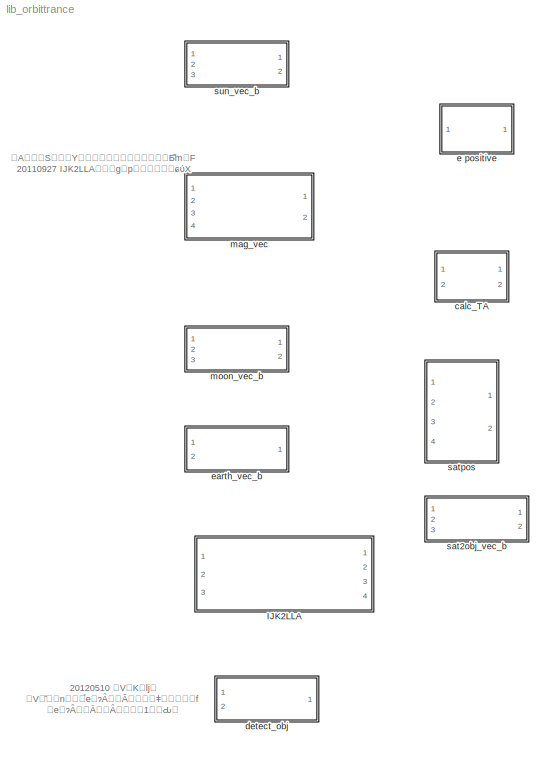
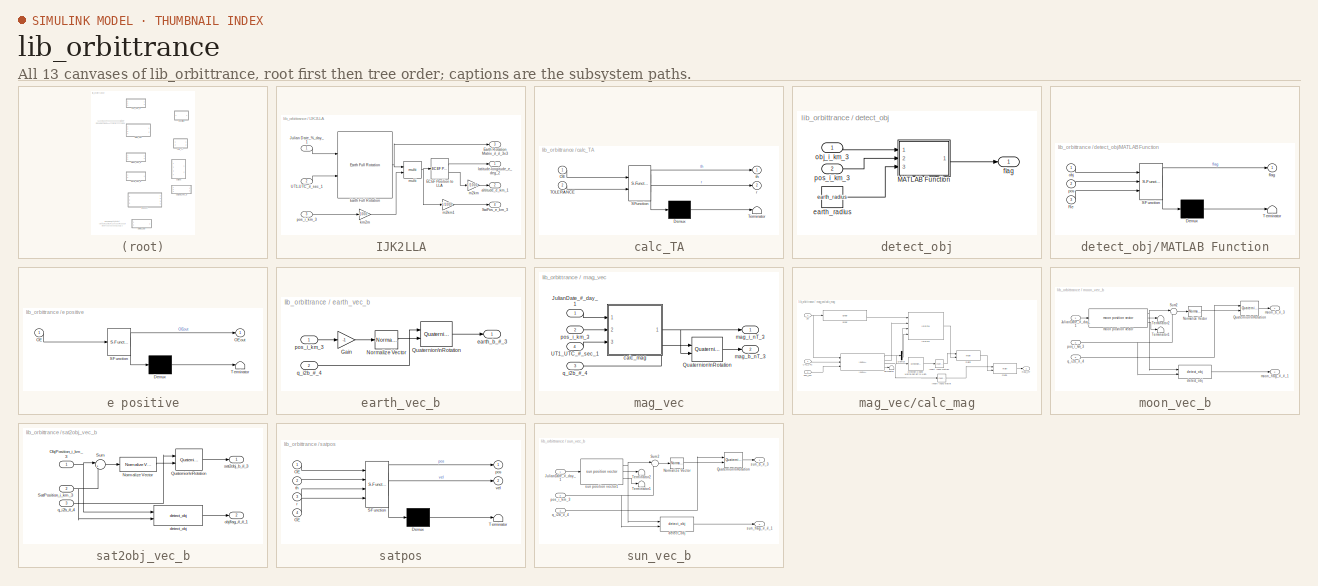
[diagram: thumbnail index - all 13 canvases of the model, root first then tree order]
MODEL lib_orbittrance
KIND library
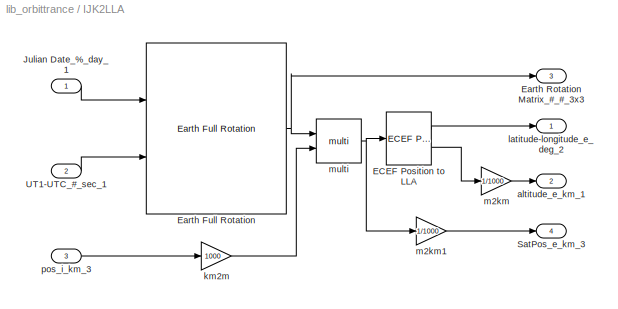
BLOCK [SubSystem] IJK2LLA
  FunctionWithSeparateData = off
  MaskHideContents = off
  MinAlgLoopOccurrences = off
  Opaque = off
  Ports = [3, 4]
  PropExecContextOutsideSubsystem = off
  RTWSystemCode = Auto
  RequestExecContextInheritance = off
  SID = 229
BLOCK [Reference] IJK2LLA/ECEF Position to LLA  REF=aerolibtransform2/ECEF Position to LLA
  F = 1/298.257223563
  Ports = [1, 2]
  R = 6378137
  SID = 235
  SourceBlock = aerolibtransform2/ECEF Position to LLA
  SourceType = ECEF to LLA
  ptype = Earth (WGS84)
  units = Metric (MKS)
BLOCK [Reference] IJK2LLA/Earth Full Rotation  REF=lib_astrodynamics/Earth Full Rotation  (lib defined in mdl_a29f7b0aead9)
  Ports = [2, 1]
  SID = 236
  SourceBlock = lib_astrodynamics/Earth Full Rotation
  SourceType = SubSystem
BLOCK [Outport] IJK2LLA/Earth Rotation Matrix_#_#_3x3
  IconDisplay = Port number
  Port = 3
  SID = 243
BLOCK [Inport] IJK2LLA/Julian Date_%_day_1
  IconDisplay = Port number
  SID = 232
BLOCK [Outport] IJK2LLA/SatPos_e_km_3
  IconDisplay = Port number
  Port = 4
  SID = 244
BLOCK [Inport] IJK2LLA/UT1-UTC_#_sec_1
  IconDisplay = Port number
  Port = 2
  SID = 233
BLOCK [Outport] IJK2LLA/altitude_e_km_1
  IconDisplay = Port number
  Port = 2
  SID = 242
BLOCK [Gain] IJK2LLA/km2m
  Gain = 1000
  OutDataTypeStr = Inherit: Inherit via internal rule
  ParamDataTypeStr = Inherit: Inherit via internal rule
  SID = 237
  SaturateOnIntegerOverflow = off
BLOCK [Outport] IJK2LLA/latitude-longitude_e_deg_2
  IconDisplay = Port number
  SID = 241
BLOCK [Gain] IJK2LLA/m2km
  Gain = 1/1000
  OutDataTypeStr = Inherit: Inherit via internal rule
  ParamDataTypeStr = Inherit: Inherit via internal rule
  SID = 238
  SaturateOnIntegerOverflow = off
BLOCK [Gain] IJK2LLA/m2km1
  Gain = 1/1000
  OutDataTypeStr = Inherit: Inherit via internal rule
  ParamDataTypeStr = Inherit: Inherit via internal rule
  SID = 239
  SaturateOnIntegerOverflow = off
BLOCK [Reference] IJK2LLA/multi  REF=lib_util/multi  (lib defined in mdl_263c60253fa7)
  Ports = [2, 1]
  SID = 240
  SourceBlock = lib_util/multi
  SourceType = SubSystem
BLOCK [Inport] IJK2LLA/pos_i_km_3
  IconDisplay = Port number
  Port = 3
  SID = 234
BLOCK [SubSystem] calc_TA
  ErrorFcn = Stateflow.Translate.translate
  FunctionWithSeparateData = off
  MaskDescription = Embedded MATLAB block
  MaskDisplay = bgColor = Simulink.Root.ColorString2Rgb(get_param(gcbh, 'BackgroundColor')); image(imread('private/eml_membrane_16.png','png','BackgroundColor',bgColor(1:3)),'center'); disp([10 10 'MOE_']);
  MaskHideContents = off
  MaskIconFrame = on
  MaskIconOpaque = off
  MaskIconRotate = none
  MaskIconUnits = normalized
  MaskPortRotate = default
  MaskSelfModifiable = on
  MaskType = Stateflow
  MinAlgLoopOccurrences = off
  Opaque = off
  PermitHierarchicalResolution = ExplicitOnly
  Ports = [2, 2]
  PropExecContextOutsideSubsystem = off
  RTWSystemCode = Auto
  RequestExecContextInheritance = off
  SID = 97
  TreatAsAtomicUnit = on
BLOCK [Demux] calc_TA/ Demux 
  Outputs = 1
  Ports = [1, 1]
  SID = 97::15
BLOCK [S-Function] calc_TA/ SFunction 
  EnableBusSupport = off
  FunctionName = sf_sfun
  PortCounts = [2 3]
  Ports = [2, 3]
  SID = 97::14
  Tag = Stateflow S-Function lib_orbittrance 3
BLOCK [Terminator] calc_TA/ Terminator 
  SID = 97::17
BLOCK [Inport] calc_TA/OE
  IconDisplay = Port number
  SID = 97::1
BLOCK [Inport] calc_TA/TOLERANCE
  IconDisplay = Port number
  Port = 2
  SID = 97::18
BLOCK [Outport] calc_TA/r
  IconDisplay = Port number
  Port = 2
  SID = 97::19
BLOCK [Outport] calc_TA/th
  IconDisplay = Port number
  SID = 97::5
BLOCK [SubSystem] detect_obj
  FunctionWithSeparateData = off
  MaskHideContents = off
  MinAlgLoopOccurrences = off
  Opaque = off
  Ports = [2, 1]
  PropExecContextOutsideSubsystem = off
  RTWSystemCode = Auto
  RequestExecContextInheritance = off
  SID = 76
BLOCK [SubSystem] detect_obj/MATLAB Function
  ErrorFcn = Stateflow.Translate.translate
  FunctionWithSeparateData = off
  MaskDescription = Embedded MATLAB block
  MaskDisplay = bgColor = Simulink.Root.ColorString2Rgb(get_param(gcbh, 'BackgroundColor')); image(imread('private/eml_membrane_16.png','png','BackgroundColor',bgColor(1:3)),'center'); disp([10 10 'detect_obj']);
  MaskHideContents = off
  MaskIconFrame = on
  MaskIconOpaque = off
  MaskIconRotate = none
  MaskIconUnits = normalized
  MaskPortRotate = default
  MaskSelfModifiable = on
  MaskType = Stateflow
  MinAlgLoopOccurrences = off
  Opaque = off
  PermitHierarchicalResolution = ExplicitOnly
  Ports = [3, 1]
  PropExecContextOutsideSubsystem = off
  RTWSystemCode = Auto
  RequestExecContextInheritance = off
  SID = 81
  TreatAsAtomicUnit = on
BLOCK [Demux] detect_obj/MATLAB Function/ Demux 
  Outputs = 1
  Ports = [1, 1]
  SID = 81::15
BLOCK [S-Function] detect_obj/MATLAB Function/ SFunction 
  EnableBusSupport = off
  FunctionName = sf_sfun
  PortCounts = [3 2]
  Ports = [3, 2]
  SID = 81::14
  Tag = Stateflow S-Function lib_orbittrance 2
BLOCK [Terminator] detect_obj/MATLAB Function/ Terminator 
  SID = 81::17
BLOCK [Inport] detect_obj/MATLAB Function/Re
  IconDisplay = Port number
  Port = 3
  SID = 81::19
BLOCK [Outport] detect_obj/MATLAB Function/flag
  IconDisplay = Port number
  SID = 81::5
BLOCK [Inport] detect_obj/MATLAB Function/obj
  IconDisplay = Port number
  SID = 81::1
BLOCK [Inport] detect_obj/MATLAB Function/pos
  IconDisplay = Port number
  Port = 2
  SID = 81::18
BLOCK [Constant] detect_obj/earth_radius
  SID = 80
  Value = earth_radius
BLOCK [Outport] detect_obj/flag
  IconDisplay = Port number
  SID = 78
BLOCK [Inport] detect_obj/obj_i_km_3
  IconDisplay = Port number
  SID = 77
BLOCK [Inport] detect_obj/pos_i_km_3
  IconDisplay = Port number
  Port = 2
  SID = 79
BLOCK [SubSystem] e positive
  ErrorFcn = Stateflow.Translate.translate
  FunctionWithSeparateData = off
  MaskDescription = Embedded MATLAB block
  MaskDisplay = bgColor = Simulink.Root.ColorString2Rgb(get_param(gcbh, 'BackgroundColor')); image(imread('private/eml_membrane_16.png','png','BackgroundColor',bgColor(1:3)),'center'); disp([10 10 'fcn']);
  MaskHideContents = off
  MaskIconFrame = on
  MaskIconOpaque = off
  MaskIconRotate = none
  MaskIconUnits = normalized
  MaskPortRotate = default
  MaskSelfModifiable = on
  MaskType = Stateflow
  MinAlgLoopOccurrences = off
  Opaque = off
  PermitHierarchicalResolution = ExplicitOnly
  Ports = [1, 1]
  PropExecContextOutsideSubsystem = off
  RTWSystemCode = Auto
  RequestExecContextInheritance = off
  SID = 96
  TreatAsAtomicUnit = on
BLOCK [Demux] e positive/ Demux 
  Outputs = 1
  Ports = [1, 1]
  SID = 96::15
BLOCK [S-Function] e positive/ SFunction 
  EnableBusSupport = off
  FunctionName = sf_sfun
  PortCounts = [1 2]
  Ports = [1, 2]
  SID = 96::14
  Tag = Stateflow S-Function lib_orbittrance 1
BLOCK [Terminator] e positive/ Terminator 
  SID = 96::17
BLOCK [Inport] e positive/OE
  IconDisplay = Port number
  SID = 96::1
BLOCK [Outport] e positive/OEout
  IconDisplay = Port number
  SID = 96::5
BLOCK [SubSystem] earth_vec_b
  FunctionWithSeparateData = off
  MaskHideContents = off
  MinAlgLoopOccurrences = off
  Opaque = off
  Ports = [2, 1]
  PropExecContextOutsideSubsystem = off
  RTWSystemCode = Auto
  RequestExecContextInheritance = off
  SID = 220
BLOCK [Gain] earth_vec_b/Gain
  Gain = -1
  OutDataTypeStr = Inherit: Inherit via internal rule
  ParamDataTypeStr = Inherit: Inherit via internal rule
  SID = 225
  SaturateOnIntegerOverflow = off
BLOCK [Reference] earth_vec_b/Normalize Vector  REF=vrlib/Utilities/Normalize Vector
  Ports = [1, 1]
  SID = 226
  SourceBlock = vrlib/Utilities/Normalize Vector
  SourceType = Normalize Vector
  maxzero = 0
BLOCK [Reference] earth_vec_b/Quaternion\nRotation  REF=aerolibutil/Quaternion\nRotation
  Ports = [2, 1]
  SID = 227
  SourceBlock = aerolibutil/Quaternion\nRotation
  SourceType = Quaternion Rotation
BLOCK [Outport] earth_vec_b/earth_b_#_3
  IconDisplay = Port number
  SID = 228
BLOCK [Inport] earth_vec_b/pos_i_km_3
  IconDisplay = Port number
  SID = 223
BLOCK [Inport] earth_vec_b/q_i2b_#_4
  IconDisplay = Port number
  Port = 2
  SID = 224
BLOCK [SubSystem] mag_vec
  FunctionWithSeparateData = off
  MaskHideContents = off
  MinAlgLoopOccurrences = off
  Opaque = off
  Ports = [4, 2]
  PropExecContextOutsideSubsystem = off
  RTWSystemCode = Auto
  RequestExecContextInheritance = off
  SID = 180
BLOCK [Inport] mag_vec/JulianDate_#_day_1
  IconDisplay = Port number
  SID = 183
BLOCK [Reference] mag_vec/Quaternion\nRotation  REF=aerolibutil/Quaternion\nRotation
  FunctionWithSeparateData = off
  GeneratePreprocessorConditionals = off
  Ports = [2, 1]
  RTWMemSecDataConstants = Inherit from model
  RTWMemSecDataInternal = Inherit from model
  RTWMemSecDataParameters = Inherit from model
  RTWMemSecFuncExecute = Inherit from model
  RTWMemSecFuncInitTerm = Inherit from model
  SID = 187
  ShowPortLabels = FromPortIcon
  SourceBlock = aerolibutil/Quaternion\nRotation
  SourceType = Quaternion Rotation
  SystemSampleTime = -1
BLOCK [Inport] mag_vec/UT1_UTC_#_sec_1
  IconDisplay = Port number
  Port = 4
  SID = 186
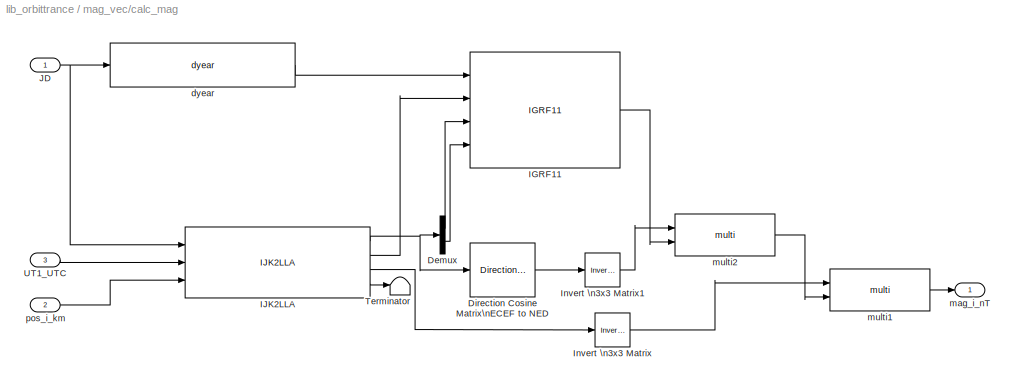
BLOCK [SubSystem] mag_vec/calc_mag
  FunctionWithSeparateData = off
  MaskHideContents = off
  MinAlgLoopOccurrences = off
  Opaque = off
  Ports = [3, 1]
  PropExecContextOutsideSubsystem = off
  RTWSystemCode = Auto
  RequestExecContextInheritance = off
  SID = 188
BLOCK [Demux] mag_vec/calc_mag/Demux
  DisplayOption = bar
  Outputs = 2
  Ports = [1, 2]
  SID = 192
BLOCK [Reference] mag_vec/calc_mag/Direction Cosine Matrix\nECEF to NED  REF=aerolibtransform2/Direction Cosine Matrix\nECEF to NED
  Ports = [1, 1]
  SID = 193
  SourceBlock = aerolibtransform2/Direction Cosine Matrix\nECEF to NED
  SourceType = DCM ECEF to NED
BLOCK [Reference] mag_vec/calc_mag/IGRF11  REF=lib_env/IGRF11  (lib defined in mdl_9d5cf06e00da)
  Ports = [4, 1]
  SID = 194
  SourceBlock = lib_env/IGRF11
  SourceType = SubSystem
BLOCK [Reference] mag_vec/calc_mag/IJK2LLA  REF=lib_orbittrance/IJK2LLA  (lib defined in mdl_e1987a65d5b0)
  Ports = [3, 4]
  SID = 195
  SourceBlock = lib_orbittrance/IJK2LLA
  SourceType = SubSystem
BLOCK [Reference] mag_vec/calc_mag/Invert \n3x3 Matrix  REF=aerolibutil/Invert \n3x3 Matrix
  Ports = [1, 1]
  SID = 196
  SourceBlock = aerolibutil/Invert \n3x3 Matrix
  SourceType = Invert 3x3 Matrix
BLOCK [Reference] mag_vec/calc_mag/Invert \n3x3 Matrix1  REF=aerolibutil/Invert \n3x3 Matrix
  Ports = [1, 1]
  SID = 197
  SourceBlock = aerolibutil/Invert \n3x3 Matrix
  SourceType = Invert 3x3 Matrix
BLOCK [Inport] mag_vec/calc_mag/JD
  IconDisplay = Port number
  SID = 189
BLOCK [Terminator] mag_vec/calc_mag/Terminator
  SID = 198
BLOCK [Inport] mag_vec/calc_mag/UT1_UTC
  IconDisplay = Port number
  Port = 3
  SID = 191
BLOCK [Reference] mag_vec/calc_mag/dyear  REF=lib_util/dyear  (lib defined in mdl_263c60253fa7)
  Ports = [1, 1]
  SID = 199
  SourceBlock = lib_util/dyear
  SourceType = SubSystem
BLOCK [Outport] mag_vec/calc_mag/mag_i_nT
  IconDisplay = Port number
  SID = 202
BLOCK [Reference] mag_vec/calc_mag/multi1  REF=lib_util/multi  (lib defined in mdl_263c60253fa7)
  Ports = [2, 1]
  SID = 200
  SourceBlock = lib_util/multi
  SourceType = SubSystem
BLOCK [Reference] mag_vec/calc_mag/multi2  REF=lib_util/multi  (lib defined in mdl_263c60253fa7)
  Ports = [2, 1]
  SID = 201
  SourceBlock = lib_util/multi
  SourceType = SubSystem
BLOCK [Inport] mag_vec/calc_mag/pos_i_km
  IconDisplay = Port number
  Port = 2
  SID = 190
BLOCK [Outport] mag_vec/mag_b_nT_3
  IconDisplay = Port number
  Port = 2
  SID = 204
BLOCK [Outport] mag_vec/mag_i_nT_3
  IconDisplay = Port number
  SID = 203
BLOCK [Inport] mag_vec/pos_i_km_3
  IconDisplay = Port number
  Port = 2
  SID = 184
BLOCK [Inport] mag_vec/q_i2b_#_4
  IconDisplay = Port number
  Port = 3
  SID = 185
BLOCK [SubSystem] moon_vec_b
  FunctionWithSeparateData = off
  MaskHideContents = off
  MinAlgLoopOccurrences = off
  Opaque = off
  Ports = [3, 2]
  PropExecContextOutsideSubsystem = off
  RTWSystemCode = Auto
  RequestExecContextInheritance = off
  SID = 205
BLOCK [Inport] moon_vec_b/JulianDate_#_day_1
  IconDisplay = Port number
  SID = 208
BLOCK [Reference] moon_vec_b/Normalize Vector  REF=vrlib/Utilities/Normalize Vector
  Ports = [1, 1]
  SID = 211
  SourceBlock = vrlib/Utilities/Normalize Vector
  SourceType = Normalize Vector
  maxzero = 0
BLOCK [Reference] moon_vec_b/Quaternion\nRotation  REF=aerolibutil/Quaternion\nRotation
  Ports = [2, 1]
  SID = 212
  SourceBlock = aerolibutil/Quaternion\nRotation
  SourceType = Quaternion Rotation
BLOCK [Sum] moon_vec_b/Sum2
  IconShape = round
  InputSameDT = off
  Inputs = |+-
  OutDataTypeStr = Inherit: Inherit via internal rule
  Ports = [2, 1]
  SID = 213
  SaturateOnIntegerOverflow = off
BLOCK [Terminator] moon_vec_b/Terminator1
  SID = 214
BLOCK [Terminator] moon_vec_b/Terminator2
  SID = 215
BLOCK [Reference] moon_vec_b/detect_obj  REF=lib_orbittrance/detect_obj  (lib defined in mdl_e1987a65d5b0)
  Ports = [2, 1]
  SID = 216
  SourceBlock = lib_orbittrance/detect_obj
  SourceType = SubSystem
BLOCK [Reference] moon_vec_b/moon position vector  REF=lib_astrodynamics/moon position vector  (lib defined in mdl_a29f7b0aead9)
  Ports = [1, 3]
  SID = 217
  SourceBlock = lib_astrodynamics/moon position vector
  SourceType = SubSystem
BLOCK [Outport] moon_vec_b/moon_b_#_3
  IconDisplay = Port number
  SID = 218
BLOCK [Outport] moon_vec_b/moon_flag_#_#_1
  IconDisplay = Port number
  Port = 2
  SID = 219
BLOCK [Inport] moon_vec_b/pos_i_km_3
  IconDisplay = Port number
  Port = 2
  SID = 209
BLOCK [Inport] moon_vec_b/q_i2b_#_4
  IconDisplay = Port number
  Port = 3
  SID = 210
BLOCK [SubSystem] sat2obj_vec_b
  FunctionWithSeparateData = off
  MaskHideContents = off
  MinAlgLoopOccurrences = off
  Opaque = off
  Ports = [3, 2]
  PropExecContextOutsideSubsystem = off
  RTWSystemCode = Auto
  RequestExecContextInheritance = off
  SID = 99
BLOCK [Reference] sat2obj_vec_b/Normalize Vector  REF=vrlib/Utilities/Normalize Vector
  Ports = [1, 1]
  SID = 107
  SourceBlock = vrlib/Utilities/Normalize Vector
  SourceType = Normalize Vector
  maxzero = 0
BLOCK [Inport] sat2obj_vec_b/ObjPosition_i_km_3
  IconDisplay = Port number
  SID = 102
BLOCK [Reference] sat2obj_vec_b/Quaternion\nRotation  REF=aerolibutil/Quaternion\nRotation
  Ports = [2, 1]
  SID = 108
  SourceBlock = aerolibutil/Quaternion\nRotation
  SourceType = Quaternion Rotation
BLOCK [Inport] sat2obj_vec_b/SatPosition_i_km_3
  IconDisplay = Port number
  Port = 2
  SID = 103
BLOCK [Sum] sat2obj_vec_b/Sum
  IconShape = round
  InputSameDT = off
  Inputs = |+-
  OutDataTypeStr = Inherit: Inherit via internal rule
  Ports = [2, 1]
  SID = 105
  SaturateOnIntegerOverflow = off
BLOCK [Reference] sat2obj_vec_b/detect_obj  REF=lib_orbittrance/detect_obj  (lib defined in mdl_e1987a65d5b0)
  Ports = [2, 1]
  SID = 106
  SourceBlock = lib_orbittrance/detect_obj
  SourceType = SubSystem
BLOCK [Outport] sat2obj_vec_b/objflag_#_#_1
  IconDisplay = Port number
  Port = 2
  SID = 110
BLOCK [Inport] sat2obj_vec_b/q_i2b_#_4
  IconDisplay = Port number
  Port = 3
  SID = 104
BLOCK [Outport] sat2obj_vec_b/sat2obj_b_#_3
  IconDisplay = Port number
  SID = 109
BLOCK [SubSystem] satpos
  ErrorFcn = Stateflow.Translate.translate
  FunctionWithSeparateData = off
  MaskDescription = Embedded MATLAB block
  MaskDisplay = bgColor = Simulink.Root.ColorString2Rgb(get_param(gcbh, 'BackgroundColor')); image(imread('private/eml_membrane_16.png','png','BackgroundColor',bgColor(1:3)),'center'); disp([10 10 'sat_pos']);
  MaskHideContents = off
  MaskIconFrame = on
  MaskIconOpaque = off
  MaskIconRotate = none
  MaskIconUnits = normalized
  MaskPortRotate = default
  MaskSelfModifiable = on
  MaskType = Stateflow
  MinAlgLoopOccurrences = off
  Opaque = off
  PermitHierarchicalResolution = ExplicitOnly
  Ports = [4, 2]
  PropExecContextOutsideSubsystem = off
  RTWSystemCode = Auto
  RequestExecContextInheritance = off
  SID = 98
  TreatAsAtomicUnit = on
BLOCK [Demux] satpos/ Demux 
  Outputs = 1
  Ports = [1, 1]
  SID = 98::15
BLOCK [S-Function] satpos/ SFunction 
  EnableBusSupport = off
  FunctionName = sf_sfun
  PortCounts = [4 3]
  Ports = [4, 3]
  SID = 98::14
  Tag = Stateflow S-Function lib_orbittrance 4
BLOCK [Terminator] satpos/ Terminator 
  SID = 98::17
BLOCK [Inport] satpos/GE
  IconDisplay = Port number
  Port = 4
  SID = 98::20
BLOCK [Inport] satpos/OE
  IconDisplay = Port number
  SID = 98::1
BLOCK [Outport] satpos/pos
  IconDisplay = Port number
  SID = 98::5
BLOCK [Inport] satpos/r
  IconDisplay = Port number
  Port = 3
  SID = 98::19
BLOCK [Inport] satpos/th
  IconDisplay = Port number
  Port = 2
  SID = 98::18
BLOCK [Outport] satpos/vel
  IconDisplay = Port number
  Port = 2
  SID = 98::21
BLOCK [SubSystem] sun_vec_b
  FunctionWithSeparateData = off
  MaskHideContents = off
  MinAlgLoopOccurrences = off
  Opaque = off
  Ports = [3, 2]
  PropExecContextOutsideSubsystem = off
  RTWSystemCode = Auto
  RequestExecContextInheritance = off
  SID = 8
BLOCK [Inport] sun_vec_b/JulianDate_#_day_1
  IconDisplay = Port number
  SID = 57
BLOCK [Reference] sun_vec_b/Normalize Vector  REF=vrlib/Utilities/Normalize Vector
  Ports = [1, 1]
  SID = 11
  SourceBlock = vrlib/Utilities/Normalize Vector
  SourceType = Normalize Vector
  maxzero = 0
BLOCK [Reference] sun_vec_b/Quaternion\nRotation  REF=aerolibutil/Quaternion\nRotation
  Ports = [2, 1]
  SID = 12
  SourceBlock = aerolibutil/Quaternion\nRotation
  SourceType = Quaternion Rotation
BLOCK [Sum] sun_vec_b/Sum2
  IconShape = round
  InputSameDT = off
  Inputs = |+-
  OutDataTypeStr = Inherit: Inherit via internal rule
  Ports = [2, 1]
  SID = 13
  SaturateOnIntegerOverflow = off
BLOCK [Terminator] sun_vec_b/Terminator1
  SID = 56
BLOCK [Terminator] sun_vec_b/Terminator2
  SID = 14
BLOCK [Reference] sun_vec_b/detect_obj  REF=lib_orbittrance/detect_obj  (lib defined in mdl_e1987a65d5b0)
  Ports = [2, 1]
  SID = 82
  SourceBlock = lib_orbittrance/detect_obj
  SourceType = SubSystem
BLOCK [Inport] sun_vec_b/pos_i_km_3
  IconDisplay = Port number
  Port = 2
  SID = 58
BLOCK [Inport] sun_vec_b/q_i2b_#_4
  IconDisplay = Port number
  Port = 3
  SID = 59
BLOCK [Reference] sun_vec_b/sun position vector1  REF=lib_astrodynamics/sun position vector  (lib defined in mdl_a29f7b0aead9)
  Ports = [1, 3]
  SID = 69
  SourceBlock = lib_astrodynamics/sun position vector
  SourceType = SubSystem
BLOCK [Outport] sun_vec_b/sun_b_#_3
  IconDisplay = Port number
  SID = 10
BLOCK [Outport] sun_vec_b/sun_flag_#_#_1
  IconDisplay = Port number
  Port = 2
  SID = 83
ANNOTATION (root): 20120510 VKÇÁ\nVÌªn ÌeÉÈÁÄ¢é<copyright redacted>\neÉÈÁÄ¢È¯êÎ1ðÔ·
ANNOTATION (root): ASYª³µ¢±ÆÍmF\n20110927 IJK2LLAðgp·éæ¤ÉÏX
LINE IJK2LLA/ECEF Position to LLA:1 -> IJK2LLA/latitude-longitude_e_deg_2:1
LINE IJK2LLA/ECEF Position to LLA:2 -> IJK2LLA/m2km:1
NET IJK2LLA/Earth Full Rotation:1 -> IJK2LLA/Earth Rotation Matrix_#_#_3x3:1, IJK2LLA/multi:1
LINE IJK2LLA/Julian Date_%_day_1:1 -> IJK2LLA/Earth Full Rotation:1
LINE IJK2LLA/UT1-UTC_#_sec_1:1 -> IJK2LLA/Earth Full Rotation:2
LINE IJK2LLA/km2m:1 -> IJK2LLA/multi:2
LINE IJK2LLA/m2km1:1 -> IJK2LLA/SatPos_e_km_3:1
LINE IJK2LLA/m2km:1 -> IJK2LLA/altitude_e_km_1:1
NET IJK2LLA/multi:1 -> IJK2LLA/ECEF Position to LLA:1, IJK2LLA/m2km1:1
LINE IJK2LLA/pos_i_km_3:1 -> IJK2LLA/km2m:1
LINE calc_TA/ Demux :1 -> calc_TA/ Terminator :1
LINE calc_TA/ SFunction :1 -> calc_TA/ Demux :1
LINE calc_TA/ SFunction :2 -> calc_TA/th:1
LINE calc_TA/ SFunction :3 -> calc_TA/r:1
LINE calc_TA/OE:1 -> calc_TA/ SFunction :1
LINE calc_TA/TOLERANCE:1 -> calc_TA/ SFunction :2
LINE detect_obj/MATLAB Function/ Demux :1 -> detect_obj/MATLAB Function/ Terminator :1
LINE detect_obj/MATLAB Function/ SFunction :1 -> detect_obj/MATLAB Function/ Demux :1
LINE detect_obj/MATLAB Function/ SFunction :2 -> detect_obj/MATLAB Function/flag:1
LINE detect_obj/MATLAB Function/Re:1 -> detect_obj/MATLAB Function/ SFunction :3
LINE detect_obj/MATLAB Function/obj:1 -> detect_obj/MATLAB Function/ SFunction :1
LINE detect_obj/MATLAB Function/pos:1 -> detect_obj/MATLAB Function/ SFunction :2
LINE detect_obj/MATLAB Function:1 -> detect_obj/flag:1
LINE detect_obj/earth_radius:1 -> detect_obj/MATLAB Function:3
LINE detect_obj/obj_i_km_3:1 -> detect_obj/MATLAB Function:1
LINE detect_obj/pos_i_km_3:1 -> detect_obj/MATLAB Function:2
LINE e positive/ Demux :1 -> e positive/ Terminator :1
LINE e positive/ SFunction :1 -> e positive/ Demux :1
LINE e positive/ SFunction :2 -> e positive/OEout:1
LINE e positive/OE:1 -> e positive/ SFunction :1
LINE earth_vec_b/Gain:1 -> earth_vec_b/Normalize Vector:1
LINE earth_vec_b/Normalize Vector:1 -> earth_vec_b/Quaternion\nRotation:2
LINE earth_vec_b/Quaternion\nRotation:1 -> earth_vec_b/earth_b_#_3:1
LINE earth_vec_b/pos_i_km_3:1 -> earth_vec_b/Gain:1
LINE earth_vec_b/q_i2b_#_4:1 -> earth_vec_b/Quaternion\nRotation:1
LINE mag_vec/JulianDate_#_day_1:1 -> mag_vec/calc_mag:1
LINE mag_vec/Quaternion\nRotation:1 -> mag_vec/mag_b_nT_3:1
LINE mag_vec/UT1_UTC_#_sec_1:1 -> mag_vec/calc_mag:3
LINE mag_vec/calc_mag/Demux:1 -> mag_vec/calc_mag/IGRF11:3
LINE mag_vec/calc_mag/Demux:2 -> mag_vec/calc_mag/IGRF11:4
LINE mag_vec/calc_mag/Direction Cosine Matrix\nECEF to NED:1 -> mag_vec/calc_mag/Invert \n3x3 Matrix1:1
LINE mag_vec/calc_mag/IGRF11:1 -> mag_vec/calc_mag/multi2:2
NET mag_vec/calc_mag/IJK2LLA:1 -> mag_vec/calc_mag/Demux:1, mag_vec/calc_mag/Direction Cosine Matrix\nECEF to NED:1
LINE mag_vec/calc_mag/IJK2LLA:2 -> mag_vec/calc_mag/IGRF11:2
LINE mag_vec/calc_mag/IJK2LLA:3 -> mag_vec/calc_mag/Invert \n3x3 Matrix:1
LINE mag_vec/calc_mag/IJK2LLA:4 -> mag_vec/calc_mag/Terminator:1
LINE mag_vec/calc_mag/Invert \n3x3 Matrix1:1 -> mag_vec/calc_mag/multi2:1
LINE mag_vec/calc_mag/Invert \n3x3 Matrix:1 -> mag_vec/calc_mag/multi1:1
NET mag_vec/calc_mag/JD:1 -> mag_vec/calc_mag/IJK2LLA:1, mag_vec/calc_mag/dyear:1
LINE mag_vec/calc_mag/UT1_UTC:1 -> mag_vec/calc_mag/IJK2LLA:2
LINE mag_vec/calc_mag/dyear:1 -> mag_vec/calc_mag/IGRF11:1
LINE mag_vec/calc_mag/multi1:1 -> mag_vec/calc_mag/mag_i_nT:1
LINE mag_vec/calc_mag/multi2:1 -> mag_vec/calc_mag/multi1:2
LINE mag_vec/calc_mag/pos_i_km:1 -> mag_vec/calc_mag/IJK2LLA:3
NET mag_vec/calc_mag:1 -> mag_vec/Quaternion\nRotation:2, mag_vec/mag_i_nT_3:1
LINE mag_vec/pos_i_km_3:1 -> mag_vec/calc_mag:2
LINE mag_vec/q_i2b_#_4:1 -> mag_vec/Quaternion\nRotation:1
LINE moon_vec_b/JulianDate_#_day_1:1 -> moon_vec_b/moon position vector:1
LINE moon_vec_b/Normalize Vector:1 -> moon_vec_b/Quaternion\nRotation:2
LINE moon_vec_b/Quaternion\nRotation:1 -> moon_vec_b/moon_b_#_3:1
LINE moon_vec_b/Sum2:1 -> moon_vec_b/Normalize Vector:1
LINE moon_vec_b/detect_obj:1 -> moon_vec_b/moon_flag_#_#_1:1
NET moon_vec_b/moon position vector:1 -> moon_vec_b/Sum2:1, moon_vec_b/detect_obj:1
LINE moon_vec_b/moon position vector:2 -> moon_vec_b/Terminator2:1
LINE moon_vec_b/moon position vector:3 -> moon_vec_b/Terminator1:1
NET moon_vec_b/pos_i_km_3:1 -> moon_vec_b/Sum2:2, moon_vec_b/detect_obj:2
LINE moon_vec_b/q_i2b_#_4:1 -> moon_vec_b/Quaternion\nRotation:1
LINE sat2obj_vec_b/Normalize Vector:1 -> sat2obj_vec_b/Quaternion\nRotation:2
NET sat2obj_vec_b/ObjPosition_i_km_3:1 -> sat2obj_vec_b/Sum:1, sat2obj_vec_b/detect_obj:1
LINE sat2obj_vec_b/Quaternion\nRotation:1 -> sat2obj_vec_b/sat2obj_b_#_3:1
NET sat2obj_vec_b/SatPosition_i_km_3:1 -> sat2obj_vec_b/Sum:2, sat2obj_vec_b/detect_obj:2
LINE sat2obj_vec_b/Sum:1 -> sat2obj_vec_b/Normalize Vector:1
LINE sat2obj_vec_b/detect_obj:1 -> sat2obj_vec_b/objflag_#_#_1:1
LINE sat2obj_vec_b/q_i2b_#_4:1 -> sat2obj_vec_b/Quaternion\nRotation:1
LINE satpos/ Demux :1 -> satpos/ Terminator :1
LINE satpos/ SFunction :1 -> satpos/ Demux :1
LINE satpos/ SFunction :2 -> satpos/pos:1
LINE satpos/ SFunction :3 -> satpos/vel:1
LINE satpos/GE:1 -> satpos/ SFunction :4
LINE satpos/OE:1 -> satpos/ SFunction :1
LINE satpos/r:1 -> satpos/ SFunction :3
LINE satpos/th:1 -> satpos/ SFunction :2
LINE sun_vec_b/JulianDate_#_day_1:1 -> sun_vec_b/sun position vector1:1
LINE sun_vec_b/Normalize Vector:1 -> sun_vec_b/Quaternion\nRotation:2
LINE sun_vec_b/Quaternion\nRotation:1 -> sun_vec_b/sun_b_#_3:1
LINE sun_vec_b/Sum2:1 -> sun_vec_b/Normalize Vector:1
LINE sun_vec_b/detect_obj:1 -> sun_vec_b/sun_flag_#_#_1:1
NET sun_vec_b/pos_i_km_3:1 -> sun_vec_b/Sum2:2, sun_vec_b/detect_obj:2
LINE sun_vec_b/q_i2b_#_4:1 -> sun_vec_b/Quaternion\nRotation:1
NET sun_vec_b/sun position vector1:1 -> sun_vec_b/Sum2:1, sun_vec_b/detect_obj:1
LINE sun_vec_b/sun position vector1:2 -> sun_vec_b/Terminator2:1
LINE sun_vec_b/sun position vector1:3 -> sun_vec_b/Terminator1:1
note: NET lines group one-source signal fan-out (src -> all destinations, sorted); 1:1 wires keep LINE
CHART e positive states=1 transitions=1
  STATE_LABEL 'eML_blk_kernel()'
CHART detect_obj/MATLAB Function states=1 transitions=1
  STATE_LABEL 'eML_blk_kernel()'
CHART calc_TA states=1 transitions=1
  STATE_LABEL 'eML_blk_kernel()'
CHART satpos states=1 transitions=1
  STATE_LABEL 'eML_blk_kernel()'
